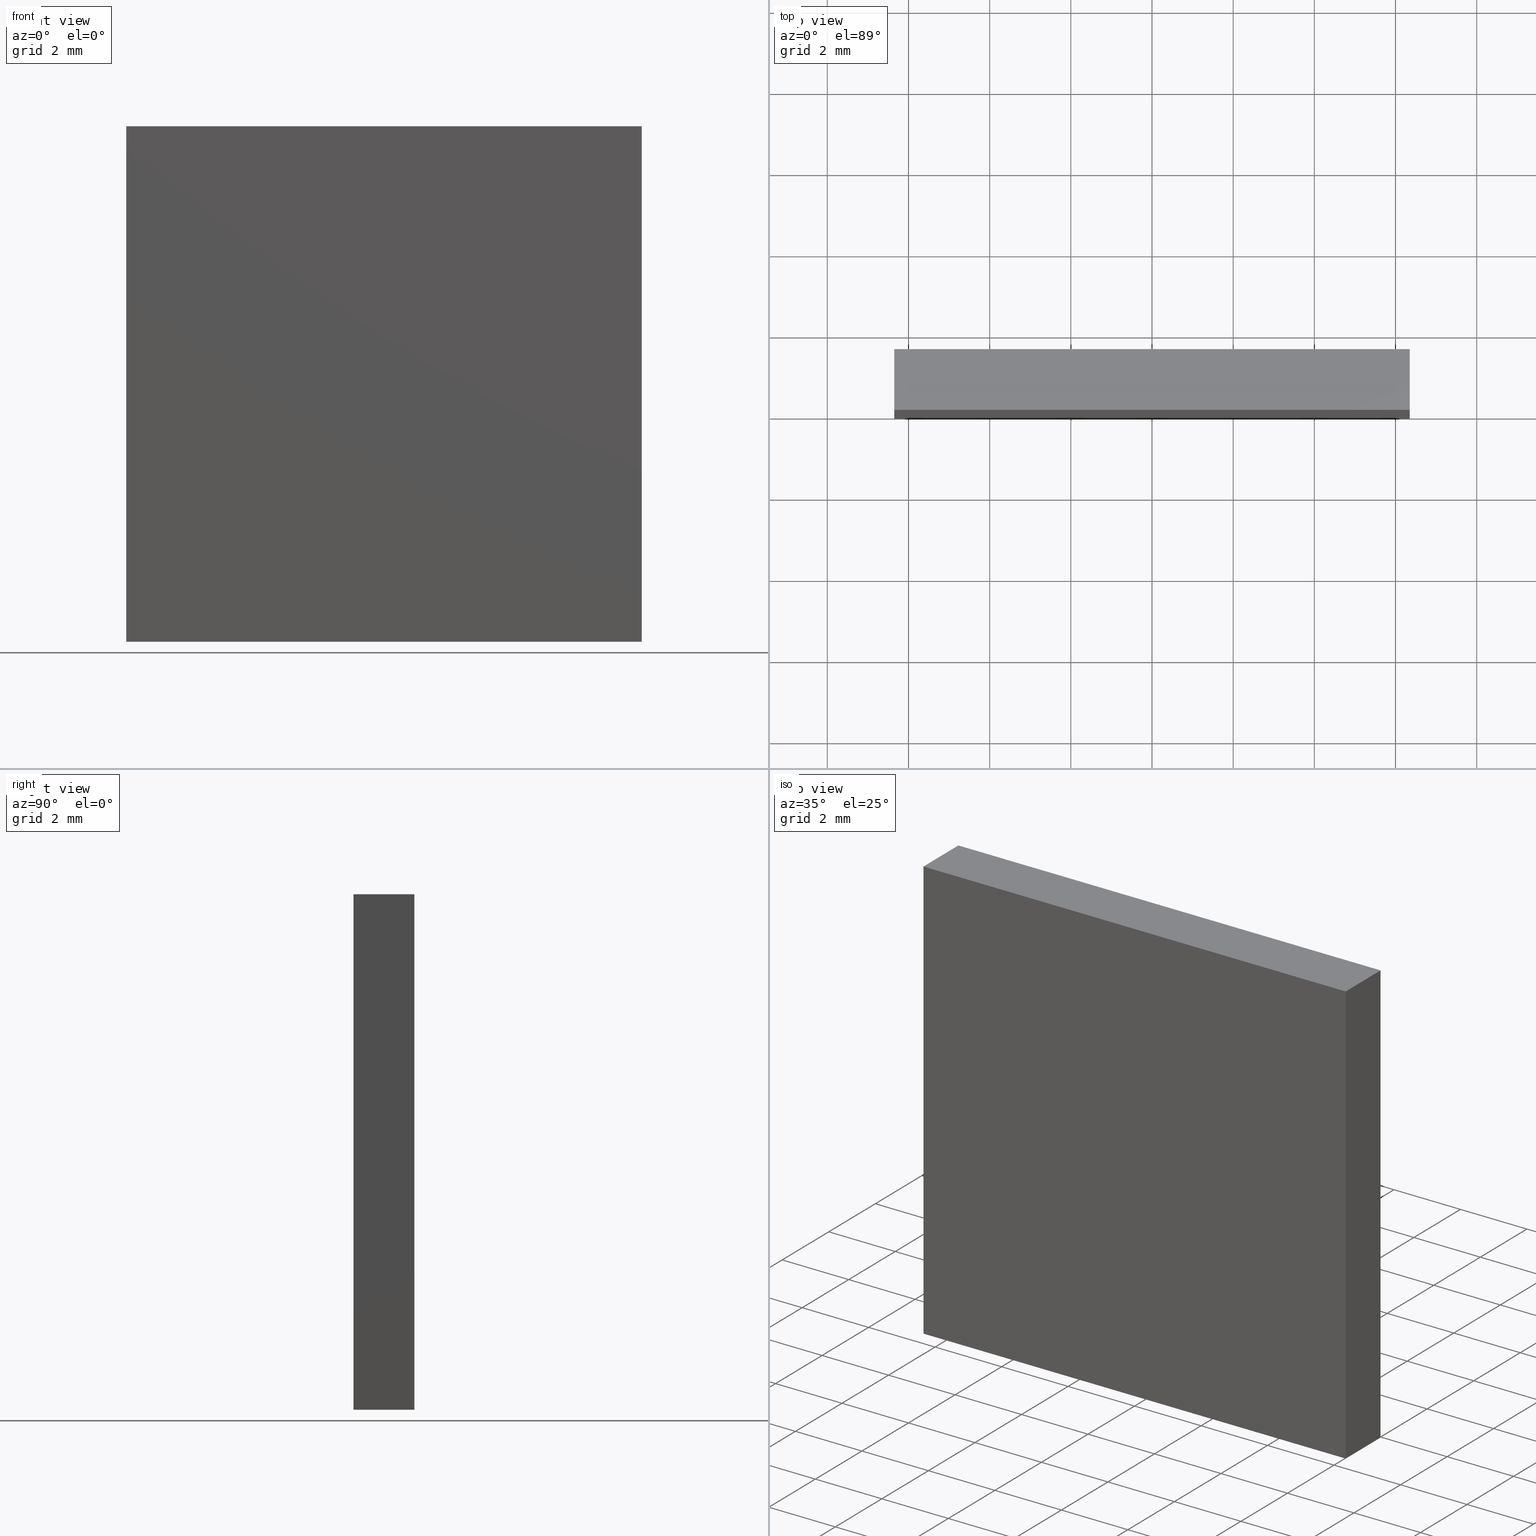
[diagram: canonical four-view strip — front | top / right | iso, engineering-drawing reading convention]
A machine part, canonical four-view strip (front | top / right | iso — engineering-drawing reading convention). The complete STEP part file that produces these views, byte-faithful:
ISO-10303-21;
HEADER;
FILE_DESCRIPTION (( 'STEP AP214' ),
    '1' );
FILE_NAME ('350501.STEP',
    '2019-08-14T05:40:05',
    ( 'user' ),
    ( '΢���й�' ),
    'SwSTEP 2.0',
    'SolidWorks 2016',
    '' );
FILE_SCHEMA (( 'AUTOMOTIVE_DESIGN' ));
ENDSEC;

DATA;
#1 = LINE ( 'NONE', #38, #6 ) ;
#2 = DIRECTION ( 'NONE',  ( 0.0000000000000000000, -0.0000000000000000000, -1.000000000000000000 ) ) ;
#3 = ORIENTED_EDGE ( 'NONE', *, *, #61, .F. ) ;
#4 = SURFACE_STYLE_FILL_AREA ( #181 ) ;
#5 = FACE_OUTER_BOUND ( 'NONE', #101, .T. ) ;
#6 = VECTOR ( 'NONE', #84, 1000.000000000000000 ) ;
#7 = ORIENTED_EDGE ( 'NONE', *, *, #102, .F. ) ;
#8 = CARTESIAN_POINT ( 'NONE',  ( -6.350000000000000500, 0.0000000000000000000, -6.349999999999999600 ) ) ;
#9 = CARTESIAN_POINT ( 'NONE',  ( -6.350000000000000500, 1.500000000000000000, 6.349999999999999600 ) ) ;
#10 = CARTESIAN_POINT ( 'NONE',  ( 6.349999999999998800, 0.0000000000000000000, 6.349999999999999600 ) ) ;
#11 = VERTEX_POINT ( 'NONE', #76 ) ;
#12 = CARTESIAN_POINT ( 'NONE',  ( 0.0000000000000000000, 0.0000000000000000000, 0.0000000000000000000 ) ) ;
#13 = AXIS2_PLACEMENT_3D ( 'NONE', #42, #34, #19 ) ;
#14 = AXIS2_PLACEMENT_3D ( 'NONE', #199, #180, #88 ) ;
#15 = DIRECTION ( 'NONE',  ( -0.0000000000000000000, -1.000000000000000000, -0.0000000000000000000 ) ) ;
#16 = FACE_OUTER_BOUND ( 'NONE', #21, .T. ) ;
#17 = PLANE ( 'NONE',  #90 ) ;
#18 = ORIENTED_EDGE ( 'NONE', *, *, #198, .T. ) ;
#19 = DIRECTION ( 'NONE',  ( -1.000000000000000000, 0.0000000000000000000, -0.0000000000000000000 ) ) ;
#20 = ORIENTED_EDGE ( 'NONE', *, *, #61, .T. ) ;
#21 = EDGE_LOOP ( 'NONE', ( #57, #163, #27, #110 ) ) ;
#22 = SHAPE_DEFINITION_REPRESENTATION ( #149, #188 ) ;
#23 = STYLED_ITEM ( 'NONE', ( #137 ), #171 ) ;
#24 = PRODUCT_DEFINITION ( 'δ֪', '', #35, #37 ) ;
#25 = DIRECTION ( 'NONE',  ( 1.000000000000000000, -0.0000000000000000000, 0.0000000000000000000 ) ) ;
#26 = CARTESIAN_POINT ( 'NONE',  ( -6.350000000000000500, 0.0000000000000000000, 6.349999999999999600 ) ) ;
#27 = ORIENTED_EDGE ( 'NONE', *, *, #79, .F. ) ;
#28 = VECTOR ( 'NONE', #74, 1000.000000000000000 ) ;
#29 = CARTESIAN_POINT ( 'NONE',  ( 6.349999999999998800, 1.500000000000000000, 6.349999999999999600 ) ) ;
#30 = DIRECTION ( 'NONE',  ( 0.0000000000000000000, 0.0000000000000000000, -1.000000000000000000 ) ) ;
#31 =( NAMED_UNIT ( * ) SI_UNIT ( $, .STERADIAN. ) SOLID_ANGLE_UNIT ( ) );
#32 = ADVANCED_FACE ( 'NONE', ( #144 ), #121, .T. ) ;
#33 = EDGE_CURVE ( 'NONE', #87, #123, #82, .T. ) ;
#34 = DIRECTION ( 'NONE',  ( 0.0000000000000000000, 0.0000000000000000000, -1.000000000000000000 ) ) ;
#35 = PRODUCT_DEFINITION_FORMATION_WITH_SPECIFIED_SOURCE ( '�κ�', '', #117, .NOT_KNOWN. ) ;
#36 = ORIENTED_EDGE ( 'NONE', *, *, #33, .F. ) ;
#37 = PRODUCT_DEFINITION_CONTEXT ( 'detailed design', #98, 'design' ) ;
#38 = CARTESIAN_POINT ( 'NONE',  ( -6.350000000000000500, 1.500000000000000000, -6.349999999999999600 ) ) ;
#39 = LINE ( 'NONE', #29, #128 ) ;
#40 = FILL_AREA_STYLE_COLOUR ( '', #133 ) ;
#41 = LINE ( 'NONE', #104, #141 ) ;
#42 = CARTESIAN_POINT ( 'NONE',  ( -6.350000000000000500, 1.500000000000000000, 6.349999999999999600 ) ) ;
#43 =( LENGTH_UNIT ( ) NAMED_UNIT ( * ) SI_UNIT ( .MILLI., .METRE. ) );
#44 = DIRECTION ( 'NONE',  ( -0.0000000000000000000, -0.0000000000000000000, 1.000000000000000000 ) ) ;
#45 =( NAMED_UNIT ( * ) SI_UNIT ( $, .STERADIAN. ) SOLID_ANGLE_UNIT ( ) );
#46 = LINE ( 'NONE', #10, #85 ) ;
#47 = VECTOR ( 'NONE', #44, 1000.000000000000000 ) ;
#48 = ADVANCED_FACE ( 'NONE', ( #186 ), #135, .F. ) ;
#49 = ORIENTED_EDGE ( 'NONE', *, *, #102, .T. ) ;
#50 = DIRECTION ( 'NONE',  ( 0.0000000000000000000, 0.0000000000000000000, -1.000000000000000000 ) ) ;
#51 = LINE ( 'NONE', #124, #114 ) ;
#52 = VECTOR ( 'NONE', #201, 1000.000000000000000 ) ;
#53 = ORIENTED_EDGE ( 'NONE', *, *, #167, .T. ) ;
#54 = PLANE ( 'NONE',  #193 ) ;
#55 = DIRECTION ( 'NONE',  ( -1.000000000000000000, 0.0000000000000000000, 0.0000000000000000000 ) ) ;
#56 = ORIENTED_EDGE ( 'NONE', *, *, #33, .T. ) ;
#57 = ORIENTED_EDGE ( 'NONE', *, *, #89, .T. ) ;
#58 = CARTESIAN_POINT ( 'NONE',  ( -6.350000000000000500, 1.500000000000000000, -6.349999999999999600 ) ) ;
#59 = APPLICATION_CONTEXT ( 'automotive_design' ) ;
#60 = SURFACE_SIDE_STYLE ('',( #4 ) ) ;
#61 = EDGE_CURVE ( 'NONE', #123, #119, #73, .T. ) ;
#62 = CARTESIAN_POINT ( 'NONE',  ( -6.350000000000000500, 1.500000000000000000, 6.349999999999999600 ) ) ;
#63 =( LENGTH_UNIT ( ) NAMED_UNIT ( * ) SI_UNIT ( .MILLI., .METRE. ) );
#64 = ORIENTED_EDGE ( 'NONE', *, *, #189, .F. ) ;
#65 = VECTOR ( 'NONE', #174, 1000.000000000000000 ) ;
#66 = UNCERTAINTY_MEASURE_WITH_UNIT (LENGTH_MEASURE( 1.000000000000000100E-005 ), #43, 'distance_accuracy_value', 'NONE');
#67 = PRODUCT_RELATED_PRODUCT_CATEGORY ( 'part', '', ( #117 ) ) ;
#68 = VERTEX_POINT ( 'NONE', #151 ) ;
#69 = ORIENTED_EDGE ( 'NONE', *, *, #112, .T. ) ;
#70 = CARTESIAN_POINT ( 'NONE',  ( 6.349999999999998800, 1.500000000000000000, -6.349999999999999600 ) ) ;
#71 = CARTESIAN_POINT ( 'NONE',  ( 6.349999999999998800, 1.500000000000000000, 6.349999999999999600 ) ) ;
#72 = CLOSED_SHELL ( 'NONE', ( #48, #168, #97, #158, #113, #32 ) ) ;
#73 = LINE ( 'NONE', #26, #126 ) ;
#74 = DIRECTION ( 'NONE',  ( -0.0000000000000000000, -1.000000000000000000, -0.0000000000000000000 ) ) ;
#75 = CARTESIAN_POINT ( 'NONE',  ( -6.350000000000000500, 0.0000000000000000000, 6.349999999999999600 ) ) ;
#76 = CARTESIAN_POINT ( 'NONE',  ( -6.350000000000000500, 1.500000000000000000, -6.349999999999999600 ) ) ;
#77 = SURFACE_STYLE_USAGE ( .BOTH. , #60 ) ;
#78 = SURFACE_SIDE_STYLE ('',( #99 ) ) ;
#79 = EDGE_CURVE ( 'NONE', #107, #11, #1, .T. ) ;
#80 = UNCERTAINTY_MEASURE_WITH_UNIT (LENGTH_MEASURE( 1.000000000000000100E-005 ), #136, 'distance_accuracy_value', 'NONE');
#81 = COLOUR_RGB ( '',1.000000000000000000, 1.000000000000000000, 1.000000000000000000 ) ;
#82 = LINE ( 'NONE', #175, #28 ) ;
#83 = CARTESIAN_POINT ( 'NONE',  ( -6.350000000000000500, 0.0000000000000000000, 6.349999999999999600 ) ) ;
#84 = DIRECTION ( 'NONE',  ( -1.000000000000000000, -0.0000000000000000000, -0.0000000000000000000 ) ) ;
#85 = VECTOR ( 'NONE', #50, 1000.000000000000000 ) ;
#86 = DIRECTION ( 'NONE',  ( 1.000000000000000000, 0.0000000000000000000, 0.0000000000000000000 ) ) ;
#87 = VERTEX_POINT ( 'NONE', #9 ) ;
#88 = DIRECTION ( 'NONE',  ( 1.000000000000000000, 0.0000000000000000000, 0.0000000000000000000 ) ) ;
#89 = EDGE_CURVE ( 'NONE', #68, #111, #41, .T. ) ;
#90 = AXIS2_PLACEMENT_3D ( 'NONE', #125, #109, #184 ) ;
#91 = APPLICATION_PROTOCOL_DEFINITION ( 'draft international standard', 'automotive_design', 1998, #59 ) ;
#92 = ORIENTED_EDGE ( 'NONE', *, *, #79, .T. ) ;
#93 = VECTOR ( 'NONE', #150, 1000.000000000000000 ) ;
#94 = CARTESIAN_POINT ( 'NONE',  ( 6.349999999999998800, 1.500000000000000000, -6.349999999999999600 ) ) ;
#95 = APPLICATION_PROTOCOL_DEFINITION ( 'draft international standard', 'automotive_design', 1998, #98 ) ;
#96 = EDGE_LOOP ( 'NONE', ( #185, #3, #7, #106 ) ) ;
#97 = ADVANCED_FACE ( 'NONE', ( #177 ), #195, .F. ) ;
#98 = APPLICATION_CONTEXT ( 'automotive_design' ) ;
#99 = SURFACE_STYLE_FILL_AREA ( #164 ) ;
#100 = EDGE_LOOP ( 'NONE', ( #190, #92, #18, #69 ) ) ;
#101 = EDGE_LOOP ( 'NONE', ( #20, #64, #134, #56 ) ) ;
#102 = EDGE_CURVE ( 'NONE', #111, #123, #116, .T. ) ;
#103 = PRESENTATION_LAYER_ASSIGNMENT (  '', '', ( #23 ) ) ;
#104 = CARTESIAN_POINT ( 'NONE',  ( -6.350000000000000500, 0.0000000000000000000, -6.349999999999999600 ) ) ;
#105 = DIRECTION ( 'NONE',  ( 0.0000000000000000000, -0.0000000000000000000, -1.000000000000000000 ) ) ;
#106 = ORIENTED_EDGE ( 'NONE', *, *, #89, .F. ) ;
#107 = VERTEX_POINT ( 'NONE', #70 ) ;
#108 =( NAMED_UNIT ( * ) SI_UNIT ( $, .STERADIAN. ) SOLID_ANGLE_UNIT ( ) );
#109 = DIRECTION ( 'NONE',  ( 0.0000000000000000000, 0.0000000000000000000, 1.000000000000000000 ) ) ;
#110 = ORIENTED_EDGE ( 'NONE', *, *, #192, .T. ) ;
#111 = VERTEX_POINT ( 'NONE', #8 ) ;
#112 = EDGE_CURVE ( 'NONE', #87, #139, #130, .T. ) ;
#113 = ADVANCED_FACE ( 'NONE', ( #196 ), #54, .F. ) ;
#114 = VECTOR ( 'NONE', #15, 1000.000000000000000 ) ;
#115 = MECHANICAL_DESIGN_GEOMETRIC_PRESENTATION_REPRESENTATION (  '', ( #23 ), #122 ) ;
#116 = LINE ( 'NONE', #83, #65 ) ;
#117 = PRODUCT ( '350501', '350501', '', ( #202 ) ) ;
#118 = DIRECTION ( 'NONE',  ( 0.0000000000000000000, 0.0000000000000000000, -1.000000000000000000 ) ) ;
#119 = VERTEX_POINT ( 'NONE', #120 ) ;
#120 = CARTESIAN_POINT ( 'NONE',  ( 6.349999999999998800, 0.0000000000000000000, 6.349999999999999600 ) ) ;
#121 = PLANE ( 'NONE',  #131 ) ;
#122 =( GEOMETRIC_REPRESENTATION_CONTEXT ( 3 ) GLOBAL_UNCERTAINTY_ASSIGNED_CONTEXT ( ( #153 ) ) GLOBAL_UNIT_ASSIGNED_CONTEXT ( ( #63, #138, #45 ) ) REPRESENTATION_CONTEXT ( 'NONE', 'WORKASPACE' ) );
#123 = VERTEX_POINT ( 'NONE', #75 ) ;
#124 = CARTESIAN_POINT ( 'NONE',  ( 6.349999999999998800, 1.500000000000000000, 6.349999999999999600 ) ) ;
#125 = CARTESIAN_POINT ( 'NONE',  ( -6.350000000000000500, 1.500000000000000000, -6.349999999999999600 ) ) ;
#126 = VECTOR ( 'NONE', #86, 1000.000000000000000 ) ;
#127 = PLANE ( 'NONE',  #13 ) ;
#128 = VECTOR ( 'NONE', #30, 1000.000000000000000 ) ;
#129 = LINE ( 'NONE', #62, #47 ) ;
#130 = LINE ( 'NONE', #194, #148 ) ;
#131 = AXIS2_PLACEMENT_3D ( 'NONE', #12, #187, #2 ) ;
#132 =( GEOMETRIC_REPRESENTATION_CONTEXT ( 3 ) GLOBAL_UNCERTAINTY_ASSIGNED_CONTEXT ( ( #80 ) ) GLOBAL_UNIT_ASSIGNED_CONTEXT ( ( #136, #183, #108 ) ) REPRESENTATION_CONTEXT ( 'NONE', 'WORKASPACE' ) );
#133 = COLOUR_RGB ( '',1.000000000000000000, 1.000000000000000000, 1.000000000000000000 ) ;
#134 = ORIENTED_EDGE ( 'NONE', *, *, #112, .F. ) ;
#135 = PLANE ( 'NONE',  #152 ) ;
#136 =( LENGTH_UNIT ( ) NAMED_UNIT ( * ) SI_UNIT ( .MILLI., .METRE. ) );
#137 = PRESENTATION_STYLE_ASSIGNMENT (( #157 ) ) ;
#138 =( NAMED_UNIT ( * ) PLANE_ANGLE_UNIT ( ) SI_UNIT ( $, .RADIAN. ) );
#139 = VERTEX_POINT ( 'NONE', #178 ) ;
#140 = EDGE_CURVE ( 'NONE', #139, #107, #39, .T. ) ;
#141 = VECTOR ( 'NONE', #146, 1000.000000000000000 ) ;
#142 = EDGE_CURVE ( 'NONE', #119, #68, #46, .T. ) ;
#143 = EDGE_LOOP ( 'NONE', ( #173, #176, #191, #159 ) ) ;
#144 = FACE_OUTER_BOUND ( 'NONE', #96, .T. ) ;
#145 = DIRECTION ( 'NONE',  ( 1.000000000000000000, 0.0000000000000000000, 0.0000000000000000000 ) ) ;
#146 = DIRECTION ( 'NONE',  ( -1.000000000000000000, -0.0000000000000000000, -0.0000000000000000000 ) ) ;
#147 = DIRECTION ( 'NONE',  ( 0.0000000000000000000, 0.0000000000000000000, 1.000000000000000000 ) ) ;
#148 = VECTOR ( 'NONE', #145, 1000.000000000000000 ) ;
#149 = PRODUCT_DEFINITION_SHAPE ( 'NONE', 'NONE',  #24 ) ;
#150 = DIRECTION ( 'NONE',  ( -0.0000000000000000000, -1.000000000000000000, -0.0000000000000000000 ) ) ;
#151 = CARTESIAN_POINT ( 'NONE',  ( 6.349999999999998800, 0.0000000000000000000, -6.349999999999999600 ) ) ;
#152 = AXIS2_PLACEMENT_3D ( 'NONE', #71, #55, #147 ) ;
#153 = UNCERTAINTY_MEASURE_WITH_UNIT (LENGTH_MEASURE( 1.000000000000000100E-005 ), #63, 'distance_accuracy_value', 'NONE');
#154 = STYLED_ITEM ( 'NONE', ( #179 ), #188 ) ;
#155 =( NAMED_UNIT ( * ) PLANE_ANGLE_UNIT ( ) SI_UNIT ( $, .RADIAN. ) );
#156 = FILL_AREA_STYLE_COLOUR ( '', #81 ) ;
#157 = SURFACE_STYLE_USAGE ( .BOTH. , #78 ) ;
#158 = ADVANCED_FACE ( 'NONE', ( #5 ), #127, .F. ) ;
#159 = ORIENTED_EDGE ( 'NONE', *, *, #189, .T. ) ;
#160 = PRESENTATION_LAYER_ASSIGNMENT (  '', '', ( #154 ) ) ;
#161 = CARTESIAN_POINT ( 'NONE',  ( 0.0000000000000000000, 1.500000000000000000, 0.0000000000000000000 ) ) ;
#162 = CARTESIAN_POINT ( 'NONE',  ( -6.350000000000000500, 1.500000000000000000, 6.349999999999999600 ) ) ;
#163 = ORIENTED_EDGE ( 'NONE', *, *, #167, .F. ) ;
#164 = FILL_AREA_STYLE ('',( #40 ) ) ;
#165 = LINE ( 'NONE', #58, #93 ) ;
#166 = LINE ( 'NONE', #94, #52 ) ;
#167 = EDGE_CURVE ( 'NONE', #11, #111, #165, .T. ) ;
#168 = ADVANCED_FACE ( 'NONE', ( #16 ), #17, .F. ) ;
#169 = EDGE_LOOP ( 'NONE', ( #49, #36, #200, #53 ) ) ;
#170 = AXIS2_PLACEMENT_3D ( 'NONE', #162, #25, #118 ) ;
#171 = MANIFOLD_SOLID_BREP ( '͹̨-����1', #72 ) ;
#172 = MECHANICAL_DESIGN_GEOMETRIC_PRESENTATION_REPRESENTATION (  '', ( #154 ), #182 ) ;
#173 = ORIENTED_EDGE ( 'NONE', *, *, #142, .T. ) ;
#174 = DIRECTION ( 'NONE',  ( -0.0000000000000000000, -0.0000000000000000000, 1.000000000000000000 ) ) ;
#175 = CARTESIAN_POINT ( 'NONE',  ( -6.350000000000000500, 1.500000000000000000, 6.349999999999999600 ) ) ;
#176 = ORIENTED_EDGE ( 'NONE', *, *, #192, .F. ) ;
#177 = FACE_OUTER_BOUND ( 'NONE', #169, .T. ) ;
#178 = CARTESIAN_POINT ( 'NONE',  ( 6.349999999999998800, 1.500000000000000000, 6.349999999999999600 ) ) ;
#179 = PRESENTATION_STYLE_ASSIGNMENT (( #77 ) ) ;
#180 = DIRECTION ( 'NONE',  ( 0.0000000000000000000, 0.0000000000000000000, 1.000000000000000000 ) ) ;
#181 = FILL_AREA_STYLE ('',( #156 ) ) ;
#182 =( GEOMETRIC_REPRESENTATION_CONTEXT ( 3 ) GLOBAL_UNCERTAINTY_ASSIGNED_CONTEXT ( ( #66 ) ) GLOBAL_UNIT_ASSIGNED_CONTEXT ( ( #43, #155, #31 ) ) REPRESENTATION_CONTEXT ( 'NONE', 'WORKASPACE' ) );
#183 =( NAMED_UNIT ( * ) PLANE_ANGLE_UNIT ( ) SI_UNIT ( $, .RADIAN. ) );
#184 = DIRECTION ( 'NONE',  ( 1.000000000000000000, 0.0000000000000000000, -0.0000000000000000000 ) ) ;
#185 = ORIENTED_EDGE ( 'NONE', *, *, #142, .F. ) ;
#186 = FACE_OUTER_BOUND ( 'NONE', #143, .T. ) ;
#187 = DIRECTION ( 'NONE',  ( 0.0000000000000000000, -1.000000000000000000, 0.0000000000000000000 ) ) ;
#188 = ADVANCED_BREP_SHAPE_REPRESENTATION ( '350501', ( #171, #14 ), #132 ) ;
#189 = EDGE_CURVE ( 'NONE', #139, #119, #51, .T. ) ;
#190 = ORIENTED_EDGE ( 'NONE', *, *, #140, .T. ) ;
#191 = ORIENTED_EDGE ( 'NONE', *, *, #140, .F. ) ;
#192 = EDGE_CURVE ( 'NONE', #107, #68, #166, .T. ) ;
#193 = AXIS2_PLACEMENT_3D ( 'NONE', #161, #197, #105 ) ;
#194 = CARTESIAN_POINT ( 'NONE',  ( -6.350000000000000500, 1.500000000000000000, 6.349999999999999600 ) ) ;
#195 = PLANE ( 'NONE',  #170 ) ;
#196 = FACE_OUTER_BOUND ( 'NONE', #100, .T. ) ;
#197 = DIRECTION ( 'NONE',  ( 0.0000000000000000000, -1.000000000000000000, 0.0000000000000000000 ) ) ;
#198 = EDGE_CURVE ( 'NONE', #11, #87, #129, .T. ) ;
#199 = CARTESIAN_POINT ( 'NONE',  ( 0.0000000000000000000, 0.0000000000000000000, 0.0000000000000000000 ) ) ;
#200 = ORIENTED_EDGE ( 'NONE', *, *, #198, .F. ) ;
#201 = DIRECTION ( 'NONE',  ( -0.0000000000000000000, -1.000000000000000000, -0.0000000000000000000 ) ) ;
#202 = PRODUCT_CONTEXT ( 'NONE', #59, 'mechanical' ) ;
ENDSEC;
END-ISO-10303-21;
